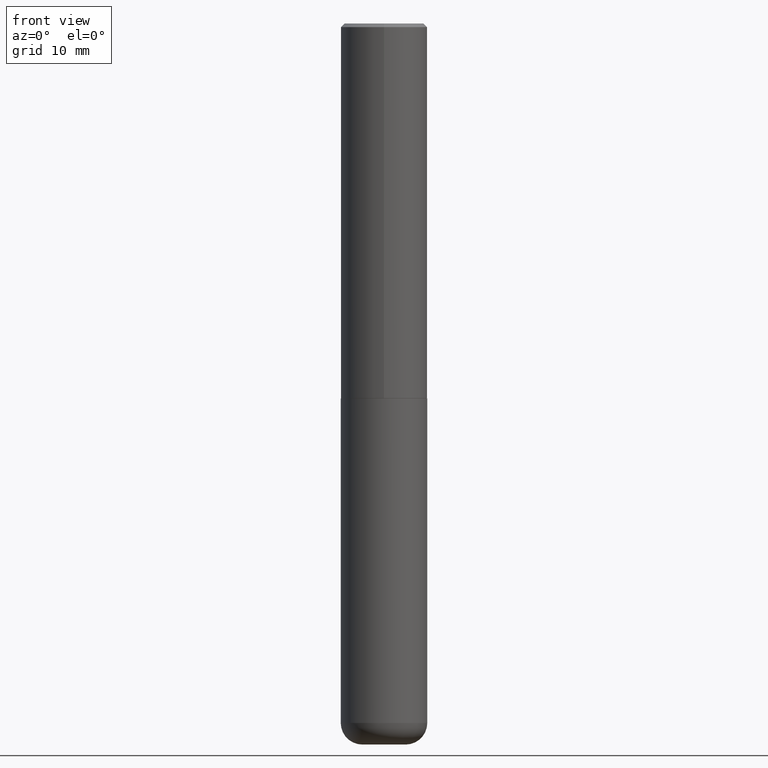
[diagram: clean part render]
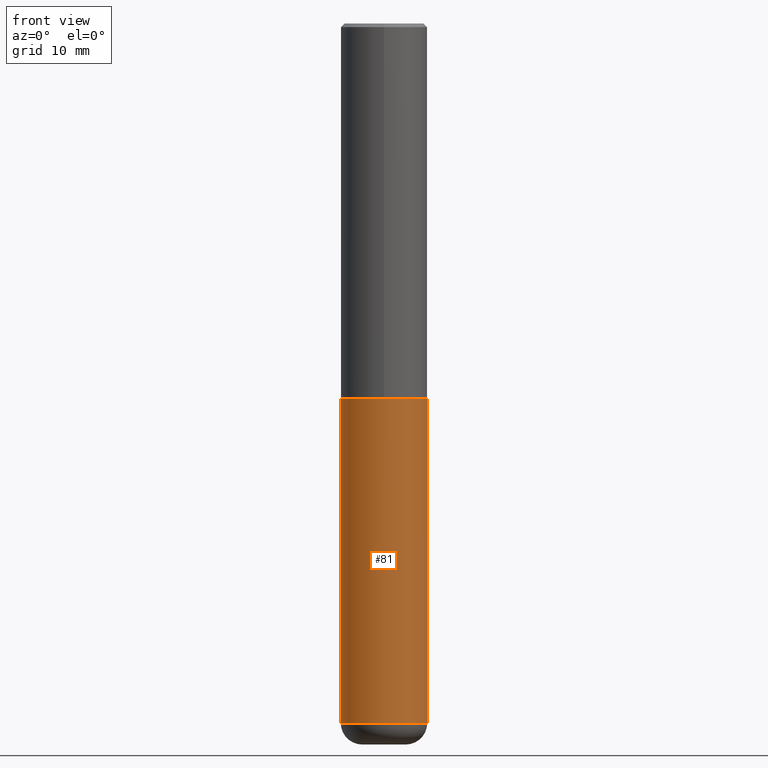
[diagram: same view with one face highlighted and labeled with its STEP entity id]
A machine part, front view. The second image highlights one B-rep face of the part: STEP entity #81.
In plain terms, the highlighted cylindrical surface (partial cylindrical patch) has radius 5.9995 mm, axis along (-0, 0, 1).
Its self-contained STEP definition (entity closure, byte-faithful):
#20 = CARTESIAN_POINT ( 'NONE',  ( 0.000000000000000000, 0.000000000000000000, 0.000000000000000000 ) ) ;
#23 = CARTESIAN_POINT ( 'NONE',  ( -0.2362000000000000210, -1.165531614304273447E-14, -3.818900000000000183 ) ) ;
#29 = LINE ( 'NONE', #382, #83 ) ;
#34 = DIRECTION ( 'NONE',  ( -2.445468806185136597E-29, 3.491481338843145583E-15, 1.000000000000000000 ) ) ;
#45 = CARTESIAN_POINT ( 'NONE',  ( -0.2361999999999999933, -8.562387399028531560E-15, -2.047200000000000131 ) ) ;
#48 = FACE_OUTER_BOUND ( 'NONE', #284, .T. ) ;
#60 = CARTESIAN_POINT ( 'NONE',  ( 9.339000823940418668E-29, -1.333361808490808928E-14, -3.818900000000000183 ) ) ;
#63 = DIRECTION ( 'NONE',  ( 1.000000000000000000, -6.982962677686265133E-15, 0.000000000000000000 ) ) ;
#65 = CARTESIAN_POINT ( 'NONE',  ( 5.006363740022212241E-29, -7.147760596879688202E-15, -2.047200000000000131 ) ) ;
#72 = VERTEX_POINT ( 'NONE', #23 ) ;
#81 = ADVANCED_FACE ( 'NONE', ( #48 ), #277, .T. ) ;
#83 = VECTOR ( 'NONE', #319, 39.37007874015748143 ) ;
#95 = ORIENTED_EDGE ( 'NONE', *, *, #283, .F. ) ;
#102 = CARTESIAN_POINT ( 'NONE',  ( 0.2362000000000000210, -1.498299386937758423E-14, -3.818900000000000183 ) ) ;
#110 = ORIENTED_EDGE ( 'NONE', *, *, #211, .F. ) ;
#111 = AXIS2_PLACEMENT_3D ( 'NONE', #65, #34, #63 ) ;
#120 = ORIENTED_EDGE ( 'NONE', *, *, #224, .T. ) ;
#130 = LINE ( 'NONE', #160, #155 ) ;
#137 = CARTESIAN_POINT ( 'NONE',  ( 0.2361999999999999933, -8.797136381349184727E-15, -2.047200000000000131 ) ) ;
#155 = VECTOR ( 'NONE', #226, 39.37007874015748143 ) ;
#160 = CARTESIAN_POINT ( 'NONE',  ( 0.2361999999999999933, -1.649375784469496131E-15, 1.151752954443000088E-29 ) ) ;
#187 = DIRECTION ( 'NONE',  ( 1.000000000000000000, -6.982962677686266711E-15, 4.876176775795936353E-29 ) ) ;
#210 = CIRCLE ( 'NONE', #111, 0.2361999999999999933 ) ;
#211 = EDGE_CURVE ( 'NONE', #397, #368, #210, .T. ) ;
#217 = CIRCLE ( 'NONE', #377, 0.2362000000000000210 ) ;
#224 = EDGE_CURVE ( 'NONE', #72, #320, #217, .T. ) ;
#226 = DIRECTION ( 'NONE',  ( -2.445468806185136877E-29, 3.491481338843145188E-15, 1.000000000000000000 ) ) ;
#227 = DIRECTION ( 'NONE',  ( -2.445468806185136597E-29, 3.491481338843145583E-15, 1.000000000000000000 ) ) ;
#255 = EDGE_CURVE ( 'NONE', #320, #368, #130, .T. ) ;
#277 = CYLINDRICAL_SURFACE ( 'NONE', #383, 0.2361999999999999933 ) ;
#283 = EDGE_CURVE ( 'NONE', #72, #397, #29, .T. ) ;
#284 = EDGE_LOOP ( 'NONE', ( #95, #120, #371, #110 ) ) ;
#319 = DIRECTION ( 'NONE',  ( -2.445468806185136877E-29, 3.491481338843145188E-15, 1.000000000000000000 ) ) ;
#320 = VERTEX_POINT ( 'NONE', #102 ) ;
#347 = DIRECTION ( 'NONE',  ( 1.000000000000000000, -6.982962677686264344E-15, 0.000000000000000000 ) ) ;
#368 = VERTEX_POINT ( 'NONE', #137 ) ;
#371 = ORIENTED_EDGE ( 'NONE', *, *, #255, .T. ) ;
#377 = AXIS2_PLACEMENT_3D ( 'NONE', #60, #227, #347 ) ;
#382 = CARTESIAN_POINT ( 'NONE',  ( -0.2361999999999999933, 1.678301941865356591E-15, -1.161852468318208757E-29 ) ) ;
#383 = AXIS2_PLACEMENT_3D ( 'NONE', #20, #403, #187 ) ;
#397 = VERTEX_POINT ( 'NONE', #45 ) ;
#403 = DIRECTION ( 'NONE',  ( -2.445468806185136597E-29, 3.491481338843145583E-15, 1.000000000000000000 ) ) ;